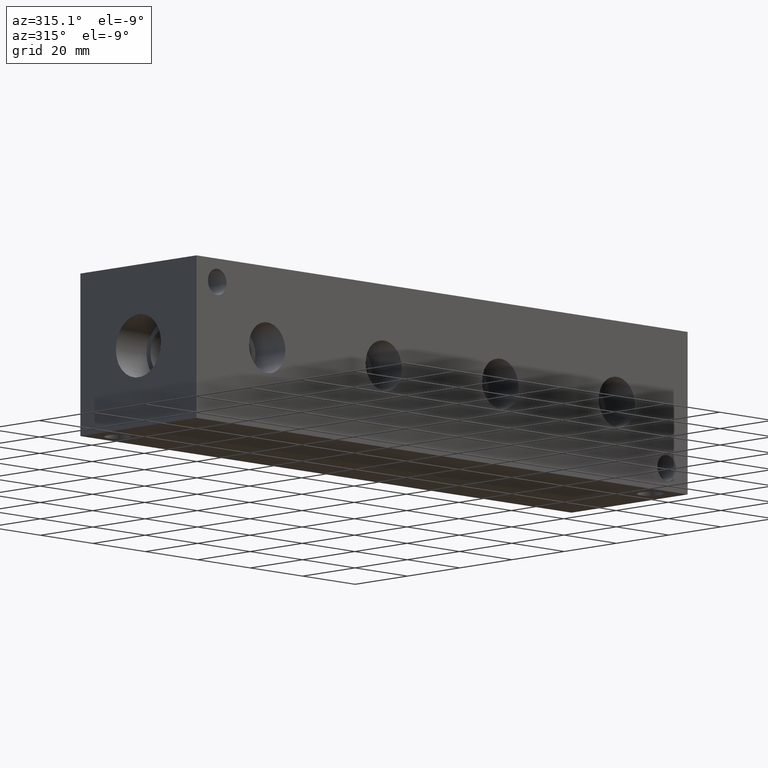
[diagram: clean part render]
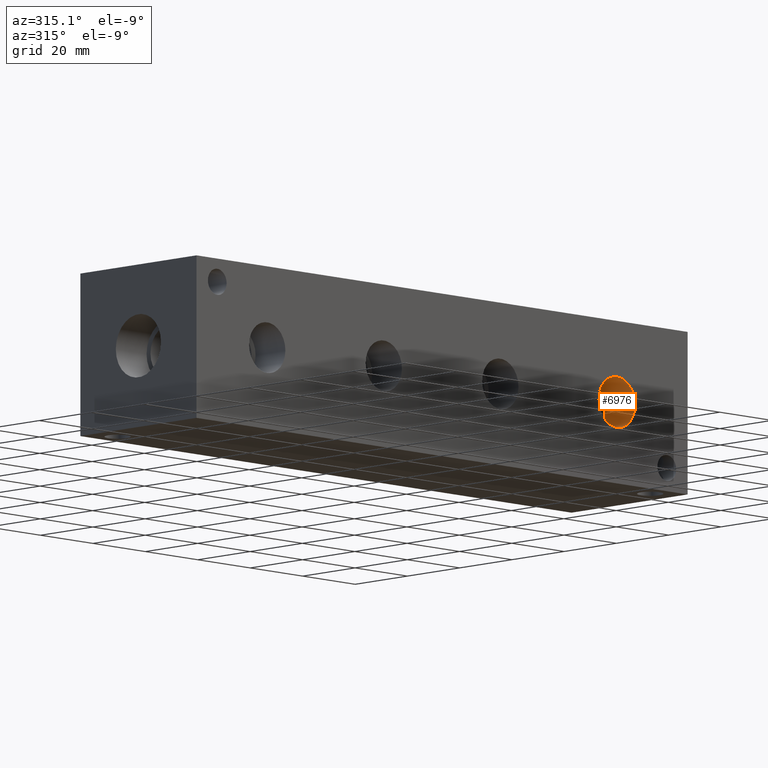
[diagram: same view with one face highlighted and labeled with its STEP entity id]
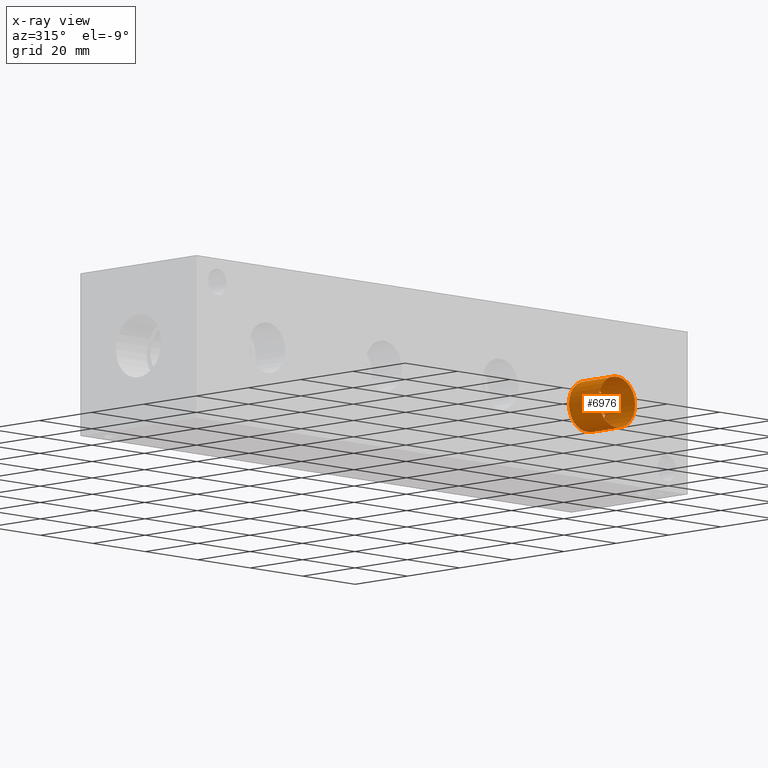
[diagram: x-ray of the same camera — body ghosted, the highlighted face saturated]
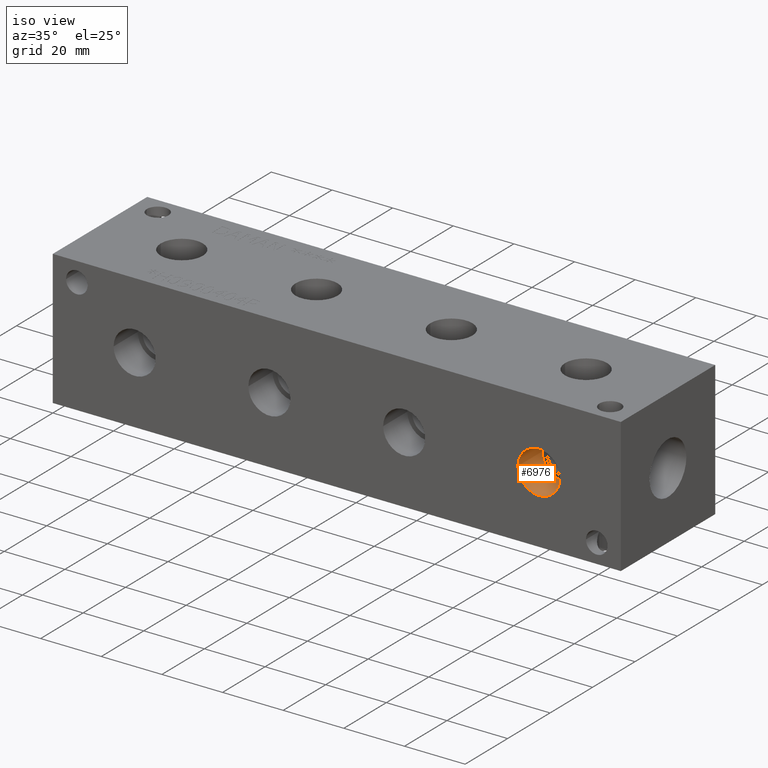
[diagram: same view with one face highlighted and labeled with its STEP entity id]
A machine part, auxiliary view. The second image highlights one B-rep face of the part: STEP entity #6976.
The next image is the same camera in x-ray: the body ghosted, the highlighted face saturated — about 0% of this face is hidden behind the body in this view.
A second angle (iso view) of the same face is appended — the face is thin or edge-on in the first view.
In plain terms, the highlighted cylindrical surface (bore or boss wall) has radius 6.9342 mm, axis along (0, -1, 0).
Its self-contained STEP definition (entity closure, byte-faithful):
#32=CYLINDRICAL_SURFACE('',#7287,6.9342);
#80=CIRCLE('',#7284,6.9342);
#81=CIRCLE('',#7285,6.9342);
#83=CIRCLE('',#7288,6.9342);
#84=CIRCLE('',#7289,6.9342);
#724=FACE_OUTER_BOUND('',#1111,.T.);
#1111=EDGE_LOOP('',(#6067,#6068,#6069,#6070,#6071,#6072));
#1828=LINE('',#11722,#2527);
#2527=VECTOR('',#8563,6.9342);
#3341=VERTEX_POINT('',#11711);
#3342=VERTEX_POINT('',#11712);
#3344=VERTEX_POINT('',#11718);
#3345=VERTEX_POINT('',#11719);
#4267=EDGE_CURVE('',#3341,#3342,#80,.T.);
#4268=EDGE_CURVE('',#3342,#3341,#81,.T.);
#4270=EDGE_CURVE('',#3344,#3345,#83,.T.);
#4271=EDGE_CURVE('',#3345,#3344,#84,.T.);
#4272=EDGE_CURVE('',#3345,#3342,#1828,.T.);
#6067=ORIENTED_EDGE('',*,*,#4270,.F.);
#6068=ORIENTED_EDGE('',*,*,#4271,.F.);
#6069=ORIENTED_EDGE('',*,*,#4272,.T.);
#6070=ORIENTED_EDGE('',*,*,#4267,.F.);
#6071=ORIENTED_EDGE('',*,*,#4268,.F.);
#6072=ORIENTED_EDGE('',*,*,#4272,.F.);
#6976=ADVANCED_FACE('',(#724),#32,.F.);
#7284=AXIS2_PLACEMENT_3D('',#11713,#8551,#8552);
#7285=AXIS2_PLACEMENT_3D('',#11714,#8553,#8554);
#7287=AXIS2_PLACEMENT_3D('',#11717,#8557,#8558);
#7288=AXIS2_PLACEMENT_3D('',#11720,#8559,#8560);
#7289=AXIS2_PLACEMENT_3D('',#11721,#8561,#8562);
#8551=DIRECTION('center_axis',(0.,-1.,0.));
#8552=DIRECTION('ref_axis',(1.,0.,0.));
#8553=DIRECTION('center_axis',(0.,-1.,0.));
#8554=DIRECTION('ref_axis',(1.,0.,0.));
#8557=DIRECTION('center_axis',(0.,-1.,0.));
#8558=DIRECTION('ref_axis',(1.,0.,0.));
#8559=DIRECTION('center_axis',(0.,1.,0.));
#8560=DIRECTION('ref_axis',(1.,0.,0.));
#8561=DIRECTION('center_axis',(0.,1.,0.));
#8562=DIRECTION('ref_axis',(1.,0.,0.));
#8563=DIRECTION('',(0.,1.,0.));
#11711=CARTESIAN_POINT('',(167.259,11.4046,22.225));
#11712=CARTESIAN_POINT('',(153.3906,11.4046,22.225));
#11713=CARTESIAN_POINT('Origin',(160.3248,11.4046,22.225));
#11714=CARTESIAN_POINT('Origin',(160.3248,11.4046,22.225));
#11717=CARTESIAN_POINT('Origin',(160.3248,5.7023,22.225));
#11718=CARTESIAN_POINT('',(167.259,0.,22.225));
#11719=CARTESIAN_POINT('',(153.3906,0.,22.225));
#11720=CARTESIAN_POINT('Origin',(160.3248,0.,22.225));
#11721=CARTESIAN_POINT('Origin',(160.3248,0.,22.225));
#11722=CARTESIAN_POINT('',(153.3906,5.7023,22.225));